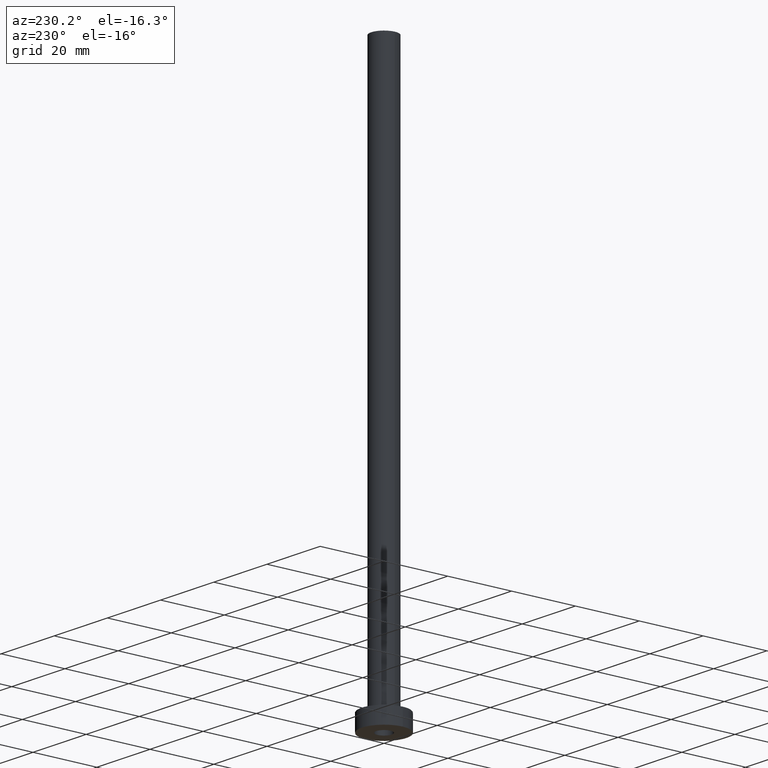
[diagram: clean part render]
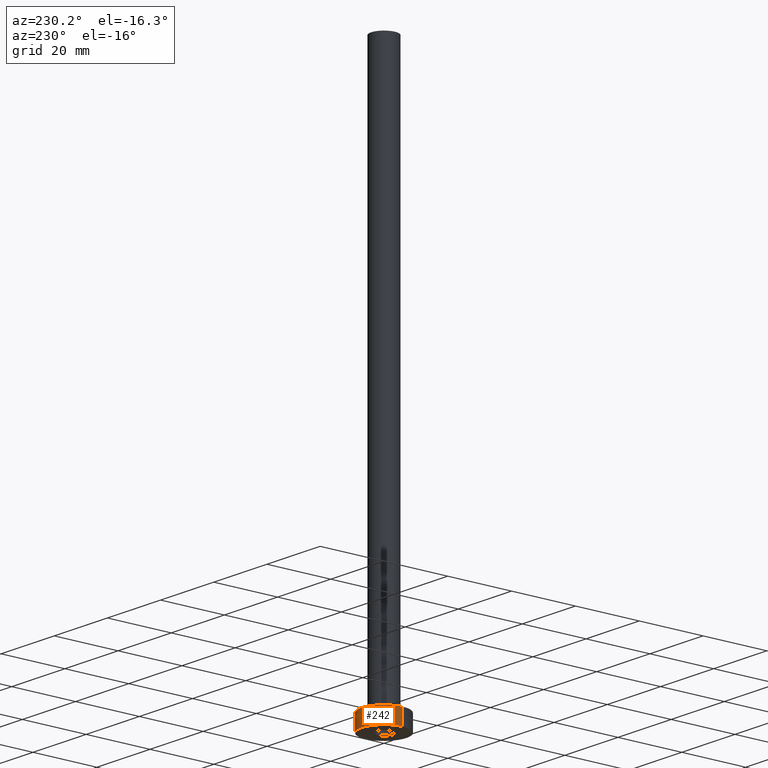
[diagram: same view with one face highlighted and labeled with its STEP entity id]
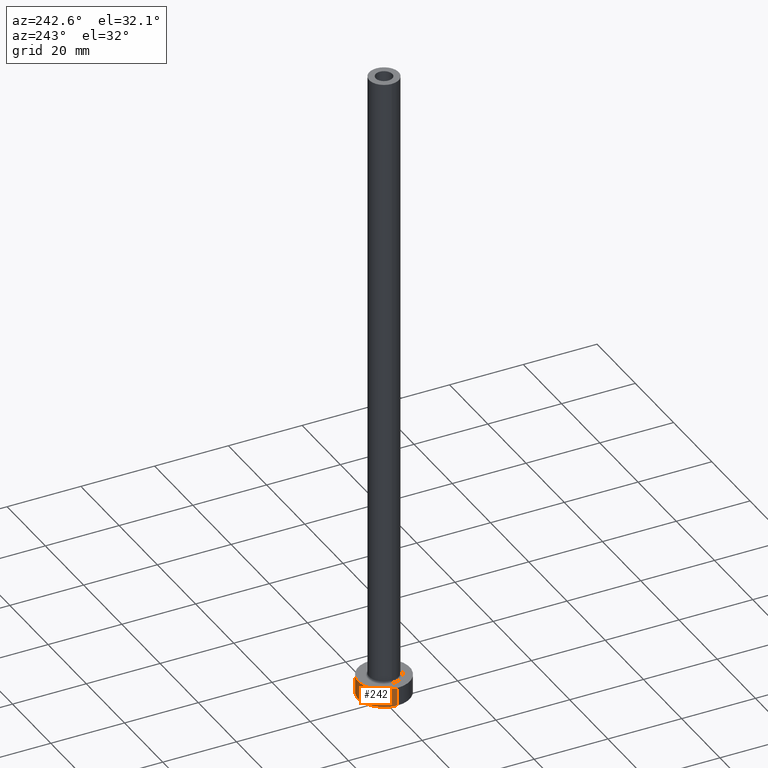
[diagram: same view with one face highlighted and labeled with its STEP entity id]
A machine part, auxiliary view. The second image highlights one B-rep face of the part: STEP entity #242.
A second angle (auxiliary view) of the same face is appended — the face is thin or edge-on in the first view.
In plain terms, the highlighted cylindrical surface (edge-blend (fillet) strip) has radius 7 mm, axis along (-0, -0, -1).
Its self-contained STEP definition (entity closure, byte-faithful):
#23 = CARTESIAN_POINT ( 'NONE',  ( 7.000000000000000000, 8.572527594031473190E-16, 5.000000000000000000 ) ) ;
#45 = ORIENTED_EDGE ( 'NONE', *, *, #268, .F. ) ;
#58 = CARTESIAN_POINT ( 'NONE',  ( -7.000000000000000000, 0.000000000000000000, 5.000000000000000000 ) ) ;
#91 = CARTESIAN_POINT ( 'NONE',  ( -7.000000000000000000, 0.000000000000000000, 5.000000000000000000 ) ) ;
#105 = DIRECTION ( 'NONE',  ( 0.000000000000000000, 0.000000000000000000, 1.000000000000000000 ) ) ;
#156 = CIRCLE ( 'NONE', #162, 7.000000000000000000 ) ;
#162 = AXIS2_PLACEMENT_3D ( 'NONE', #290, #105, #253 ) ;
#167 = CYLINDRICAL_SURFACE ( 'NONE', #402, 7.000000000000000000 ) ;
#182 = EDGE_CURVE ( 'NONE', #353, #347, #156, .T. ) ;
#196 = ORIENTED_EDGE ( 'NONE', *, *, #182, .F. ) ;
#207 = DIRECTION ( 'NONE',  ( -0.000000000000000000, -0.000000000000000000, -1.000000000000000000 ) ) ;
#212 = CARTESIAN_POINT ( 'NONE',  ( 7.000000000000000000, 8.572527594031473190E-16, 0.000000000000000000 ) ) ;
#217 = AXIS2_PLACEMENT_3D ( 'NONE', #386, #246, #240 ) ;
#237 = FACE_OUTER_BOUND ( 'NONE', #304, .T. ) ;
#240 = DIRECTION ( 'NONE',  ( 1.000000000000000000, 0.000000000000000000, 0.000000000000000000 ) ) ;
#242 = ADVANCED_FACE ( 'NONE', ( #237 ), #167, .T. ) ;
#246 = DIRECTION ( 'NONE',  ( 0.000000000000000000, 0.000000000000000000, 1.000000000000000000 ) ) ;
#253 = DIRECTION ( 'NONE',  ( 1.000000000000000000, 0.000000000000000000, 0.000000000000000000 ) ) ;
#264 = CARTESIAN_POINT ( 'NONE',  ( -7.000000000000000000, 0.000000000000000000, 0.000000000000000000 ) ) ;
#268 = EDGE_CURVE ( 'NONE', #347, #411, #409, .T. ) ;
#270 = ORIENTED_EDGE ( 'NONE', *, *, #315, .T. ) ;
#276 = LINE ( 'NONE', #279, #365 ) ;
#279 = CARTESIAN_POINT ( 'NONE',  ( 7.000000000000000000, 8.572527594031473190E-16, 5.000000000000000000 ) ) ;
#290 = CARTESIAN_POINT ( 'NONE',  ( 0.000000000000000000, 0.000000000000000000, 5.000000000000000000 ) ) ;
#301 = CIRCLE ( 'NONE', #217, 7.000000000000000000 ) ;
#304 = EDGE_LOOP ( 'NONE', ( #196, #351, #270, #45 ) ) ;
#315 = EDGE_CURVE ( 'NONE', #344, #411, #301, .T. ) ;
#341 = EDGE_CURVE ( 'NONE', #353, #344, #276, .T. ) ;
#344 = VERTEX_POINT ( 'NONE', #212 ) ;
#347 = VERTEX_POINT ( 'NONE', #91 ) ;
#351 = ORIENTED_EDGE ( 'NONE', *, *, #341, .T. ) ;
#353 = VERTEX_POINT ( 'NONE', #23 ) ;
#356 = VECTOR ( 'NONE', #207, 1000.000000000000000 ) ;
#365 = VECTOR ( 'NONE', #412, 1000.000000000000000 ) ;
#386 = CARTESIAN_POINT ( 'NONE',  ( 0.000000000000000000, 0.000000000000000000, 0.000000000000000000 ) ) ;
#402 = AXIS2_PLACEMENT_3D ( 'NONE', #442, #416, #449 ) ;
#409 = LINE ( 'NONE', #58, #356 ) ;
#411 = VERTEX_POINT ( 'NONE', #264 ) ;
#412 = DIRECTION ( 'NONE',  ( -0.000000000000000000, -0.000000000000000000, -1.000000000000000000 ) ) ;
#416 = DIRECTION ( 'NONE',  ( -0.000000000000000000, -0.000000000000000000, -1.000000000000000000 ) ) ;
#442 = CARTESIAN_POINT ( 'NONE',  ( 0.000000000000000000, 0.000000000000000000, 5.000000000000000000 ) ) ;
#449 = DIRECTION ( 'NONE',  ( -1.000000000000000000, 0.000000000000000000, 0.000000000000000000 ) ) ;